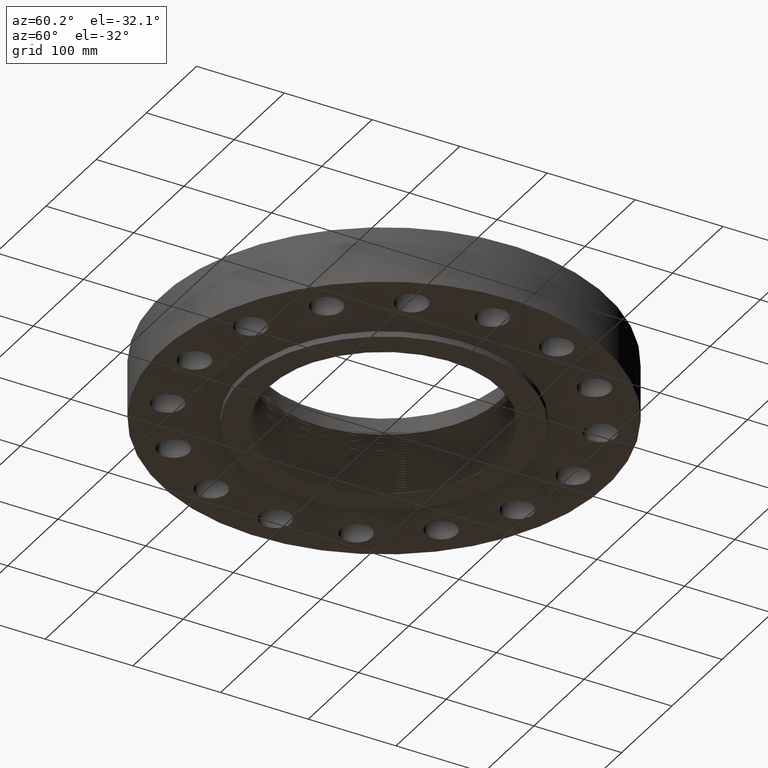
[diagram: clean part render]
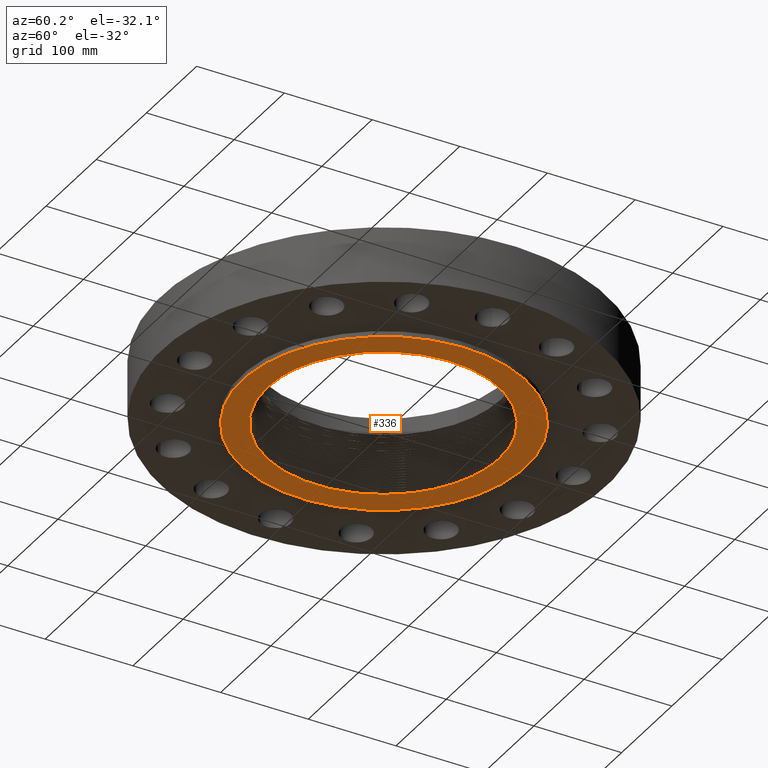
[diagram: same view with one face highlighted and labeled with its STEP entity id]
A machine part, auxiliary view. The second image highlights one B-rep face of the part: STEP entity #336.
In plain terms, the highlighted planar face has unit normal (0, 0, -1).
Its self-contained STEP definition (entity closure, byte-faithful):
#189=AXIS2_PLACEMENT_3D('Plane Axis2P3D',#186,#187,#188) ;
#193=AXIS2_PLACEMENT_3D('Circle Axis2P3D',#191,#192,$) ;
#202=AXIS2_PLACEMENT_3D('Circle Axis2P3D',#200,#201,$) ;
#324=AXIS2_PLACEMENT_3D('Circle Axis2P3D',#322,#323,$) ;
#186=CARTESIAN_POINT('Axis2P3D Location',(0.,0.,-0.250000000001)) ;
#191=CARTESIAN_POINT('Axis2P3D Location',(0.,0.,-0.250000000001)) ;
#195=CARTESIAN_POINT('Vertex',(3.05633780861,5.59458883207,-0.250000000001)) ;
#197=CARTESIAN_POINT('Vertex',(-3.05633780861,-5.59458883207,-0.250000000001)) ;
#200=CARTESIAN_POINT('Axis2P3D Location',(0.,0.,-0.250000000001)) ;
#210=CARTESIAN_POINT('Control Point',(-2.48644563646,4.55141545676,-0.250000000001)) ;
#211=CARTESIAN_POINT('Control Point',(-2.17457517335,4.71942902148,-0.250000000001)) ;
#212=CARTESIAN_POINT('Control Point',(-1.84843347431,4.86077454171,-0.250000000001)) ;
#213=CARTESIAN_POINT('Control Point',(-1.51105172259,4.9738266245,-0.250000000001)) ;
#214=CARTESIAN_POINT('Control Point',(-1.09833751935,5.07381228381,-0.250000000001)) ;
#215=CARTESIAN_POINT('Control Point',(-0.679183935996,5.13106608048,-0.250000000001)) ;
#216=CARTESIAN_POINT('Control Point',(-0.610566175639,5.13927470125,-0.250000000001)) ;
#217=CARTESIAN_POINT('Control Point',(-0.541827520553,5.1463362013,-0.250000000001)) ;
#218=CARTESIAN_POINT('Control Point',(-0.472993610656,5.15224846055,-0.250000000001)) ;
#219=CARTESIAN_POINT('Vertex',(-2.48644563646,4.55141545676,-0.250000000001)) ;
#221=CARTESIAN_POINT('Vertex',(-0.472993666546,5.15224859636,-0.250000105445)) ;
#225=CARTESIAN_POINT('Control Point',(-2.51813310081E-007,-5.26646708232,-0.250000000001)) ;
#226=CARTESIAN_POINT('Control Point',(-0.357029776714,-5.26440989841,-0.250000000001)) ;
#227=CARTESIAN_POINT('Control Point',(-0.713800430324,-5.23209706867,-0.250000000001)) ;
#228=CARTESIAN_POINT('Control Point',(-1.06683980551,-5.1695644738,-0.250000000001)) ;
#229=CARTESIAN_POINT('Control Point',(-1.7587816581,-4.98528572985,-0.250000000001)) ;
#230=CARTESIAN_POINT('Control Point',(-2.40929211922,-4.68733561261,-0.250000000001)) ;
#231=CARTESIAN_POINT('Control Point',(-2.72106615913,-4.51106775607,-0.250000000001)) ;
#232=CARTESIAN_POINT('Control Point',(-3.31153863715,-4.10744702955,-0.250000000001)) ;
#233=CARTESIAN_POINT('Control Point',(-3.82526168876,-3.61034090899,-0.250000000001)) ;
#234=CARTESIAN_POINT('Control Point',(-4.06033107603,-3.34054590361,-0.250000000001)) ;
#235=CARTESIAN_POINT('Control Point',(-4.48217713165,-2.7638817921,-0.250000000001)) ;
#236=CARTESIAN_POINT('Control Point',(-4.8005899717,-2.12444529685,-0.250000000001)) ;
#237=CARTESIAN_POINT('Control Point',(-4.93213172065,-1.79202528143,-0.250000000001)) ;
#238=CARTESIAN_POINT('Control Point',(-5.08604425782,-1.2791308268,-0.250000000001)) ;
#239=CARTESIAN_POINT('Control Point',(-5.17330220345,-0.75236555719,-0.250000000001)) ;
#240=CARTESIAN_POINT('Control Point',(-5.19488939401,-0.575703843606,-0.250000000001)) ;
#241=CARTESIAN_POINT('Control Point',(-5.23701738262,-0.0436476076961,-0.250000000001)) ;
#242=CARTESIAN_POINT('Control Point',(-5.21111340347,0.490662700822,-0.250000000001)) ;
#243=CARTESIAN_POINT('Control Point',(-5.16349320136,0.844427652024,-0.250000000001)) ;
#244=CARTESIAN_POINT('Control Point',(-5.00851635113,1.5402285381,-0.250000000001)) ;
#245=CARTESIAN_POINT('Control Point',(-4.73824349099,2.19939283365,-0.250000000001)) ;
#246=CARTESIAN_POINT('Control Point',(-4.57530043075,2.51659324277,-0.250000000001)) ;
#247=CARTESIAN_POINT('Control Point',(-4.19706500815,3.11991865754,-0.250000000001)) ;
#248=CARTESIAN_POINT('Control Point',(-3.72232167241,3.65028889033,-0.250000000001)) ;
#249=CARTESIAN_POINT('Control Point',(-3.46290420932,3.89448284011,-0.250000000001)) ;
#250=CARTESIAN_POINT('Control Point',(-3.11019376568,4.17370482851,-0.250000000001)) ;
#251=CARTESIAN_POINT('Control Point',(-2.73087805781,4.41252093987,-0.250000000001)) ;
#252=CARTESIAN_POINT('Control Point',(-2.65043677389,4.46066485197,-0.250000000001)) ;
#253=CARTESIAN_POINT('Control Point',(-2.56894038088,4.50697317151,-0.250000000001)) ;
#254=CARTESIAN_POINT('Control Point',(-2.48644563646,4.55141545676,-0.250000000001)) ;
#255=CARTESIAN_POINT('Vertex',(-2.51813315396E-007,-5.26646708232,-0.250000000001)) ;
#259=CARTESIAN_POINT('Control Point',(-2.51813314697E-007,-5.26646708232,-0.250000000001)) ;
#260=CARTESIAN_POINT('Control Point',(0.215109214416,-5.26770653096,-0.250000000001)) ;
#261=CARTESIAN_POINT('Control Point',(0.430312594922,-5.25796309775,-0.250000000001)) ;
#262=CARTESIAN_POINT('Control Point',(0.644862077361,-5.23723039967,-0.250000000001)) ;
#263=CARTESIAN_POINT('Control Point',(0.858008970253,-5.20557906476,-0.250000000001)) ;
#264=CARTESIAN_POINT('Control Point',(1.06902132852,-5.16315431075,-0.250000000001)) ;
#265=CARTESIAN_POINT('Vertex',(1.06902132852,-5.16315431075,-0.250000000001)) ;
#269=CARTESIAN_POINT('Control Point',(2.52309248859,-4.61848902458,-0.250000000001)) ;
#270=CARTESIAN_POINT('Control Point',(2.25065430742,-4.7695849793,-0.250000000001)) ;
#271=CARTESIAN_POINT('Control Point',(1.96696696546,-4.90055988455,-0.250000000001)) ;
#272=CARTESIAN_POINT('Control Point',(1.67401835761,-5.01029954898,-0.250000000001)) ;
#273=CARTESIAN_POINT('Control Point',(1.37396444868,-5.09799099349,-0.250000000001)) ;
#274=CARTESIAN_POINT('Control Point',(1.06902132852,-5.16315431075,-0.250000000001)) ;
#275=CARTESIAN_POINT('Vertex',(2.52309248859,-4.61848902458,-0.250000000001)) ;
#279=CARTESIAN_POINT('Control Point',(2.52309248859,-4.61848902458,-0.250000000001)) ;
#280=CARTESIAN_POINT('Control Point',(2.83519283837,-4.44539617773,-0.250000000001)) ;
#281=CARTESIAN_POINT('Control Point',(3.13253583567,-4.24589375962,-0.250000000001)) ;
#282=CARTESIAN_POINT('Control Point',(3.4121099874,-4.02166567685,-0.250000000001)) ;
#283=CARTESIAN_POINT('Control Point',(3.9303949375,-3.52808563006,-0.250000000001)) ;
#284=CARTESIAN_POINT('Control Point',(4.35781241753,-2.95463330375,-0.250000000001)) ;
#285=CARTESIAN_POINT('Control Point',(4.54658121533,-2.6504567817,-0.250000000001)) ;
#286=CARTESIAN_POINT('Control Point',(4.87053887768,-2.01321679013,-0.250000000001)) ;
#287=CARTESIAN_POINT('Control Point',(5.08227457911,-1.3307996829,-0.250000000001)) ;
#288=CARTESIAN_POINT('Control Point',(5.158809421,-0.98146481295,-0.250000000001)) ;
#289=CARTESIAN_POINT('Control Point',(5.23236048535,-0.420888876263,-0.250000000001)) ;
#290=CARTESIAN_POINT('Control Point',(5.23013932642,0.142969982549,-0.250000000001)) ;
#291=CARTESIAN_POINT('Control Point',(5.21900844667,0.350449006683,-0.250000000001)) ;
#292=CARTESIAN_POINT('Control Point',(5.16089641038,0.911155743099,-0.250000000001)) ;
#293=CARTESIAN_POINT('Control Point',(5.02786830922,1.4600200064,-0.250000000001)) ;
#294=CARTESIAN_POINT('Control Point',(4.9145052658,1.79853957329,-0.250000000001)) ;
#295=CARTESIAN_POINT('Control Point',(4.63130410083,2.45285004822,-0.250000000001)) ;
#296=CARTESIAN_POINT('Control Point',(4.2418429828,3.04932290857,-0.250000000001)) ;
#297=CARTESIAN_POINT('Control Point',(4.02212302481,3.33017674542,-0.250000000001)) ;
#298=CARTESIAN_POINT('Control Point',(3.5371168392,3.8515402331,-0.250000000001)) ;
#299=CARTESIAN_POINT('Control Point',(2.97116934674,4.28302465422,-0.250000000001)) ;
#300=CARTESIAN_POINT('Control Point',(2.67047430431,4.47402457987,-0.250000000001)) ;
#301=CARTESIAN_POINT('Control Point',(2.03970426265,4.80269097531,-0.250000000001)) ;
#302=CARTESIAN_POINT('Control Point',(1.36253330441,5.01961090568,-0.250000000001)) ;
#303=CARTESIAN_POINT('Control Point',(1.01559390298,5.09879471193,-0.250000000001)) ;
#304=CARTESIAN_POINT('Control Point',(0.6019322931,5.15655186364,-0.250000000001)) ;
#305=CARTESIAN_POINT('Control Point',(0.18613969279,5.17256045506,-0.250000000001)) ;
#306=CARTESIAN_POINT('Control Point',(0.124095340163,5.17401841602,-0.250000000001)) ;
#307=CARTESIAN_POINT('Control Point',(0.0620412091387,5.17454621602,-0.250000000001)) ;
#308=CARTESIAN_POINT('Control Point',(-3.78671880083E-006,5.1741439925,-0.250000000001)) ;
#309=CARTESIAN_POINT('Vertex',(-3.78671880148E-006,5.1741439925,-0.250000000001)) ;
#313=CARTESIAN_POINT('Control Point',(-3.78671880137E-006,5.1741439925,-0.250000000001)) ;
#314=CARTESIAN_POINT('Control Point',(-0.00709738439479,5.17409800633,-0.250000000001)) ;
#315=CARTESIAN_POINT('Control Point',(-0.0141908651504,5.17403986352,-0.250000000001)) ;
#316=CARTESIAN_POINT('Control Point',(-0.0212842355074,5.17396956399,-0.250000000001)) ;
#317=CARTESIAN_POINT('Control Point',(-0.0283773988047,5.17388710878,-0.250000000001)) ;
#318=CARTESIAN_POINT('Control Point',(-0.0354703615719,5.17379249801,-0.250000000001)) ;
#319=CARTESIAN_POINT('Vertex',(-0.0354703623431,5.1737926636,-0.249999903558)) ;
#322=CARTESIAN_POINT('Axis2P3D Location',(5.59482469102E-016,1.39870617276E-016,-0.250000000001)) ;
#187=DIRECTION('Axis2P3D Direction',(0.,0.,-0.0393700787402)) ;
#188=DIRECTION('Axis2P3D XDirection',(0.0393700787402,0.,0.)) ;
#192=DIRECTION('Axis2P3D Direction',(0.,0.,-0.0393700787402)) ;
#201=DIRECTION('Axis2P3D Direction',(0.,0.,-0.0393700787402)) ;
#323=DIRECTION('Axis2P3D Direction',(0.,0.,-0.0393700787402)) ;
#206=ORIENTED_EDGE('',*,*,#199,.T.) ;
#207=ORIENTED_EDGE('',*,*,#204,.T.) ;
#328=ORIENTED_EDGE('',*,*,#223,.F.) ;
#329=ORIENTED_EDGE('',*,*,#257,.F.) ;
#330=ORIENTED_EDGE('',*,*,#267,.T.) ;
#331=ORIENTED_EDGE('',*,*,#277,.F.) ;
#332=ORIENTED_EDGE('',*,*,#311,.T.) ;
#333=ORIENTED_EDGE('',*,*,#321,.T.) ;
#334=ORIENTED_EDGE('',*,*,#326,.F.) ;
#335=FACE_BOUND('',#327,.T.) ;
#336=ADVANCED_FACE('PartBody',(#208,#335),#190,.T.) ;
#209=B_SPLINE_CURVE_WITH_KNOTS('',5,(#210,#211,#212,#213,#214,#215,#216,#217,#218),.UNSPECIFIED.,.F.,.U.,(6,3,6),(0.,63.8393263399,76.3040672679),.UNSPECIFIED.) ;
#224=B_SPLINE_CURVE_WITH_KNOTS('',5,(#225,#226,#227,#228,#229,#230,#231,#232,#233,#234,#235,#236,#237,#238,#239,#240,#241,#242,#243,#244,#245,#246,#247,#248,#249,#250,#251,#252,#253,#254),.UNSPECIFIED.,.F.,.U.,(6,3,3,3,3,3,3,3,3,6),(0.,63.8605350983,127.753181421,191.656976355,255.528998934,287.453767183,351.306184205,415.172434648,479.027674991,495.914201718),.UNSPECIFIED.) ;
#258=B_SPLINE_CURVE_WITH_KNOTS('',5,(#259,#260,#261,#262,#263,#264),.UNSPECIFIED.,.F.,.U.,(6,6),(0.,38.4758252752),.UNSPECIFIED.) ;
#268=B_SPLINE_CURVE_WITH_KNOTS('',5,(#269,#270,#271,#272,#273,#274),.UNSPECIFIED.,.F.,.U.,(6,6),(0.,55.7429973713),.UNSPECIFIED.) ;
#278=B_SPLINE_CURVE_WITH_KNOTS('',5,(#279,#280,#281,#282,#283,#284,#285,#286,#287,#288,#289,#290,#291,#292,#293,#294,#295,#296,#297,#298,#299,#300,#301,#302,#303,#304,#305,#306,#307,#308),.UNSPECIFIED.,.F.,.U.,(6,3,3,3,3,3,3,3,3,6),(0.,63.8581894297,127.734002206,191.605956793,228.857057806,292.72817826,356.635196905,420.549967594,484.433552858,495.632100202),.UNSPECIFIED.) ;
#312=B_SPLINE_CURVE_WITH_KNOTS('',5,(#313,#314,#315,#316,#317,#318),.UNSPECIFIED.,.F.,.U.,(6,6),(0.,1.28032870846),.UNSPECIFIED.) ;
#194=CIRCLE('generated circle',#193,6.37500000003) ;
#203=CIRCLE('generated circle',#202,6.37500000003) ;
#325=CIRCLE('generated circle',#324,5.17391424758) ;
#199=EDGE_CURVE('',#196,#198,#194,.T.) ;
#204=EDGE_CURVE('',#198,#196,#203,.T.) ;
#223=EDGE_CURVE('',#220,#222,#209,.T.) ;
#257=EDGE_CURVE('',#256,#220,#224,.T.) ;
#267=EDGE_CURVE('',#256,#266,#258,.T.) ;
#277=EDGE_CURVE('',#276,#266,#268,.T.) ;
#311=EDGE_CURVE('',#276,#310,#278,.T.) ;
#321=EDGE_CURVE('',#310,#320,#312,.T.) ;
#326=EDGE_CURVE('',#222,#320,#325,.T.) ;
#205=EDGE_LOOP('',(#206,#207)) ;
#327=EDGE_LOOP('',(#328,#329,#330,#331,#332,#333,#334)) ;
#208=FACE_OUTER_BOUND('',#205,.T.) ;
#190=PLANE('',#189) ;
#196=VERTEX_POINT('',#195) ;
#198=VERTEX_POINT('',#197) ;
#220=VERTEX_POINT('',#219) ;
#222=VERTEX_POINT('',#221) ;
#256=VERTEX_POINT('',#255) ;
#266=VERTEX_POINT('',#265) ;
#276=VERTEX_POINT('',#275) ;
#310=VERTEX_POINT('',#309) ;
#320=VERTEX_POINT('',#319) ;